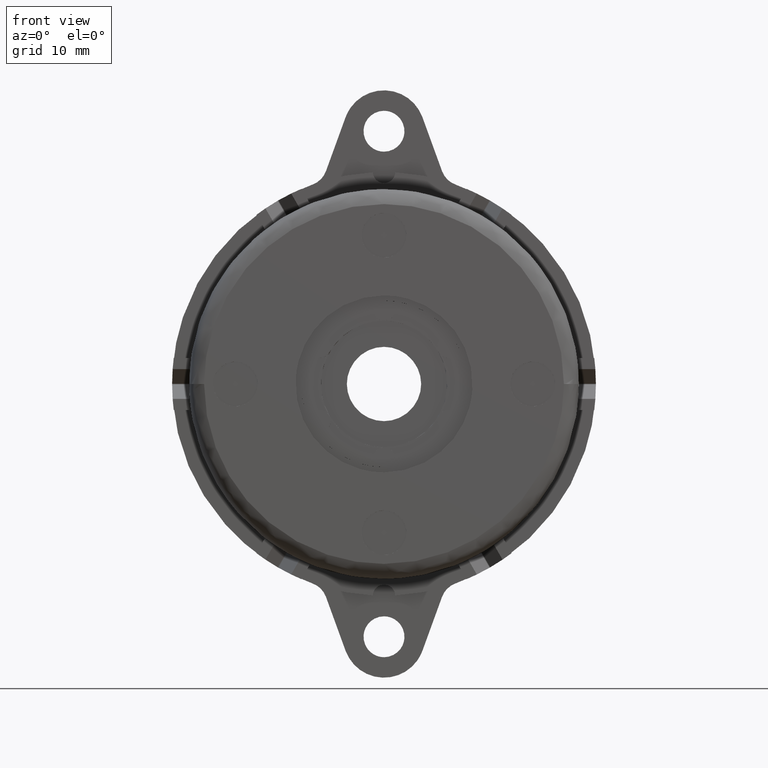
[diagram: clean part render]
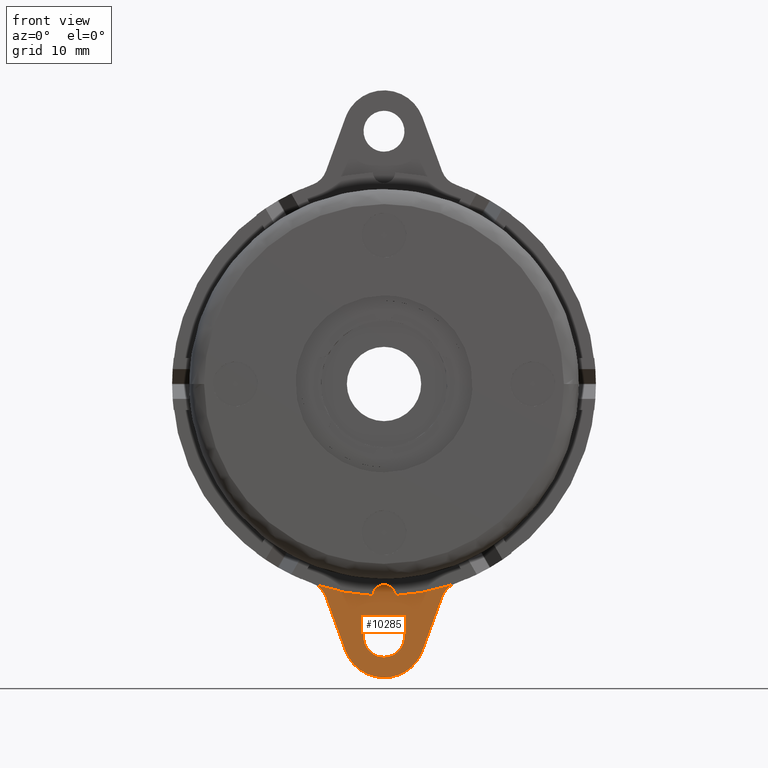
[diagram: same view with one face highlighted and labeled with its STEP entity id]
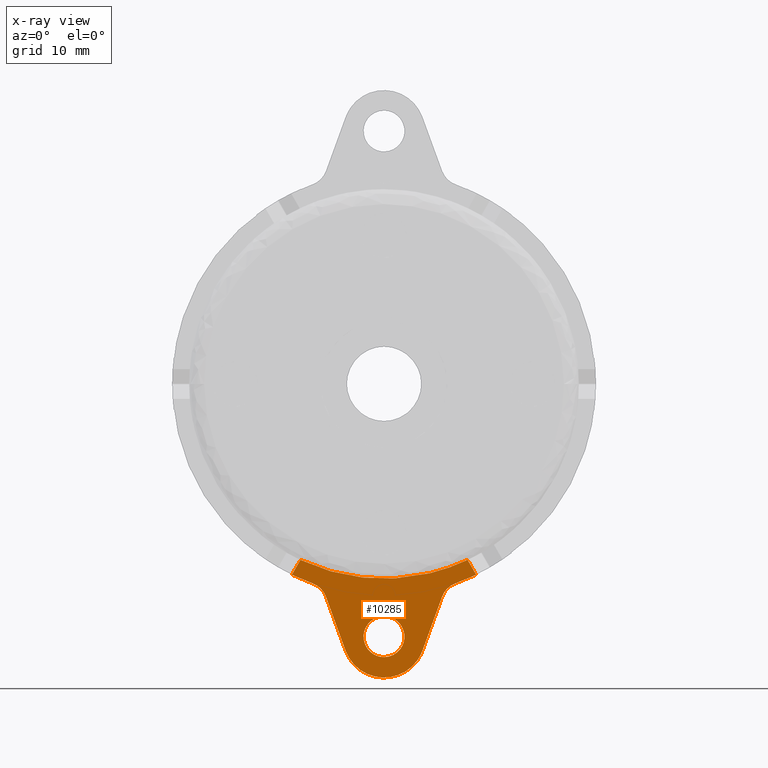
[diagram: x-ray of the same camera — body ghosted, the highlighted face saturated]
A machine part, front view. The second image highlights one B-rep face of the part: STEP entity #10285.
The next image is the same camera in x-ray: the body ghosted, the highlighted face saturated — about 0% of this face is hidden behind the body in this view.
In plain terms, the highlighted face is a freeform B-spline surface patch.
Its self-contained STEP definition (entity closure, byte-faithful):
#3379=CARTESIAN_POINT('',(0.0,-1.600010000000095,-31.250000000000000));
#3380=VERTEX_POINT('',#3379);
#3381=CARTESIAN_POINT('',(-2.741522667755104,-1.600010000000095,-33.784237486608703));
#3382=VERTEX_POINT('',#3381);
#3383=CARTESIAN_POINT('',(0.0,-1.600010000000095,-31.250000000000000));
#3384=CARTESIAN_POINT('',(-2.542073851930101,-1.600010000000095,-31.249999999999996));
#3385=CARTESIAN_POINT('',(-2.741522667755105,-1.600010000000095,-33.784237486608689));
#3393=(BOUNDED_CURVE()B_SPLINE_CURVE(2,(#3383,#3384,#3385),.UNSPECIFIED.,.F.,.U.)B_SPLINE_CURVE_WITH_KNOTS((3,3),(0.0,0.236331300624029),.UNSPECIFIED.)CURVE()GEOMETRIC_REPRESENTATION_ITEM()RATIONAL_B_SPLINE_CURVE((1.0,0.723120658615433,0.969723356153581))REPRESENTATION_ITEM(''));
#3394=EDGE_CURVE('',#3380,#3382,#3393,.T.);
#3435=CARTESIAN_POINT('',(2.741522667755104,-1.600010000000095,-34.215762513391297));
#3436=VERTEX_POINT('',#3435);
#3442=CARTESIAN_POINT('',(2.741522667755105,-1.600010000000095,-34.215762513391297));
#3443=CARTESIAN_POINT('',(2.750000000000000,-1.600010000000095,-34.108047794341282));
#3444=CARTESIAN_POINT('',(2.750000000000000,-1.600010000000095,-34.0));
#3445=CARTESIAN_POINT('',(2.750000000000000,-1.600010000000095,-31.250000000000000));
#3446=CARTESIAN_POINT('',(0.0,-1.600010000000095,-31.250000000000000));
#3454=(BOUNDED_CURVE()B_SPLINE_CURVE(2,(#3442,#3443,#3444,#3445,#3446),.UNSPECIFIED.,.F.,.U.)B_SPLINE_CURVE_WITH_KNOTS((3,2,3),(0.736331300624030,0.750000000000000,1.0),.UNSPECIFIED.)CURVE()GEOMETRIC_REPRESENTATION_ITEM()RATIONAL_B_SPLINE_CURVE((0.969723356153582,0.983986122571115,1.0,0.707106781186548,1.0))REPRESENTATION_ITEM(''));
#3455=EDGE_CURVE('',#3436,#3380,#3454,.T.);
#3478=CARTESIAN_POINT('',(0.0,-1.600010000000095,-36.750000000000007));
#3479=VERTEX_POINT('',#3478);
#3480=CARTESIAN_POINT('',(-2.741522667755105,-1.600010000000094,-33.784237486608696));
#3481=CARTESIAN_POINT('',(-2.750000000000000,-1.600010000000095,-33.891952205658725));
#3482=CARTESIAN_POINT('',(-2.750000000000000,-1.600010000000095,-34.0));
#3483=CARTESIAN_POINT('',(-2.750000000000000,-1.600010000000095,-36.750000000000007));
#3484=CARTESIAN_POINT('',(0.0,-1.600010000000095,-36.750000000000007));
#3492=(BOUNDED_CURVE()B_SPLINE_CURVE(2,(#3480,#3481,#3482,#3483,#3484),.UNSPECIFIED.,.F.,.U.)B_SPLINE_CURVE_WITH_KNOTS((3,2,3),(0.236331300624030,0.250000000000000,0.500000000000000),.UNSPECIFIED.)CURVE()GEOMETRIC_REPRESENTATION_ITEM()RATIONAL_B_SPLINE_CURVE((0.969723356153582,0.983986122571115,1.0,0.707106781186548,1.0))REPRESENTATION_ITEM(''));
#3493=EDGE_CURVE('',#3382,#3479,#3492,.T.);
#3495=CARTESIAN_POINT('',(0.0,-1.600010000000095,-36.750000000000007));
#3496=CARTESIAN_POINT('',(2.542073851930109,-1.600010000000095,-36.750000000000007));
#3497=CARTESIAN_POINT('',(2.741522667755105,-1.600010000000095,-34.215762513391297));
#3505=(BOUNDED_CURVE()B_SPLINE_CURVE(2,(#3495,#3496,#3497),.UNSPECIFIED.,.F.,.U.)B_SPLINE_CURVE_WITH_KNOTS((3,3),(0.500000000000000,0.736331300624030),.UNSPECIFIED.)CURVE()GEOMETRIC_REPRESENTATION_ITEM()RATIONAL_B_SPLINE_CURVE((1.0,0.723120658615433,0.969723356153582))REPRESENTATION_ITEM(''));
#3506=EDGE_CURVE('',#3479,#3436,#3505,.T.);
#4405=CARTESIAN_POINT('',(-5.168339999999890,-1.600010000000095,-35.881100000000004));
#4406=VERTEX_POINT('',#4405);
#4412=CARTESIAN_POINT('',(-7.808637704701380,-1.600010000000095,-28.626958831556649));
#4413=VERTEX_POINT('',#4412);
#4414=CARTESIAN_POINT('',(-7.808637704701380,-1.600010000000095,-28.626958831556649));
#4415=CARTESIAN_POINT('',(-5.168339999999890,-1.600010000000095,-35.881100000000004));
#4416=QUASI_UNIFORM_CURVE('',1,(#4414,#4415),.UNSPECIFIED.,.F.,.U.);
#4417=EDGE_CURVE('',#4413,#4406,#4416,.T.);
#4467=CARTESIAN_POINT('',(5.172314241144200,-1.600010000000095,-35.870070958775862));
#4468=VERTEX_POINT('',#4467);
#4474=CARTESIAN_POINT('',(-5.168339999999890,-1.600010000000095,-35.881100000000004));
#4475=CARTESIAN_POINT('',(-5.024652273700400,-1.600010000000103,-36.276114147201604));
#4476=CARTESIAN_POINT('',(-4.740690490187050,-1.600010000000084,-36.843677232018052));
#4477=CARTESIAN_POINT('',(-4.157418297594880,-1.600010000000101,-37.634201014369957));
#4478=CARTESIAN_POINT('',(-3.583367690201776,-1.600010000000097,-38.204709002605092));
#4479=CARTESIAN_POINT('',(-2.826110810992194,-1.600010000000077,-38.745173945947428));
#4480=CARTESIAN_POINT('',(-2.023339941418148,-1.600010000000130,-39.145188376895248));
#4481=CARTESIAN_POINT('',(-1.061891087671165,-1.600010000000061,-39.427406180029877));
#4482=CARTESIAN_POINT('',(-0.029465141878731,-1.600010000000124,-39.535212056554521));
#4483=CARTESIAN_POINT('',(1.004691050001323,-1.600010000000118,-39.439976064454228));
#4484=CARTESIAN_POINT('',(1.883643697830362,-1.600010000000080,-39.188988655585213));
#4485=CARTESIAN_POINT('',(2.650612793947301,-1.600010000000096,-38.840779544654687));
#4486=CARTESIAN_POINT('',(3.405389387498034,-1.600010000000093,-38.357605928993081));
#4487=CARTESIAN_POINT('',(4.113098414348349,-1.600010000000108,-37.696984601319429));
#4488=CARTESIAN_POINT('',(4.741283357292510,-1.600010000000067,-36.850242766234139));
#4489=CARTESIAN_POINT('',(5.041353084450384,-1.600010000000136,-36.232443845220601));
#4490=CARTESIAN_POINT('',(5.172314241144200,-1.600010000000095,-35.870070958775862));
#4491=B_SPLINE_CURVE_WITH_KNOTS('',3,(#4474,#4475,#4476,#4477,#4478,#4479,#4480,#4481,#4482,#4483,#4484,#4485,#4486,#4487,#4488,#4489,#4490),.UNSPECIFIED.,.F.,.U.,(4,1,1,1,1,1,1,1,1,1,1,1,1,1,4),(0.000000164549167,1.260986827615415,1.891503313839763,2.942370109790785,3.677975447672797,4.676285744535443,5.622064577821482,6.672930841937554,7.776242134699047,8.722024261193226,9.405091572457000,10.298315993828981,11.401724854001490,12.294929739515300,13.450858885865840),.UNSPECIFIED.);
#4492=EDGE_CURVE('',#4406,#4468,#4491,.T.);
#4510=CARTESIAN_POINT('',(7.808582423385880,-1.600010000000095,-28.626980816584400));
#4511=VERTEX_POINT('',#4510);
#4517=CARTESIAN_POINT('',(5.172314241144200,-1.600010000000095,-35.870070958775862));
#4518=CARTESIAN_POINT('',(7.808582423385880,-1.600010000000095,-28.626980816584400));
#4519=QUASI_UNIFORM_CURVE('',1,(#4517,#4518),.UNSPECIFIED.,.F.,.U.);
#4520=EDGE_CURVE('',#4468,#4511,#4519,.T.);
#4555=CARTESIAN_POINT('',(9.615502280273301,-1.600010000000095,-26.828941758818200));
#4556=VERTEX_POINT('',#4555);
#4562=CARTESIAN_POINT('',(9.615502280273308,-1.600010000000095,-26.828941758818221));
#4563=CARTESIAN_POINT('',(8.290123113941904,-1.600010000000096,-27.303958124005177));
#4564=CARTESIAN_POINT('',(7.808582423385887,-1.600010000000095,-28.626980816584400));
#4572=(BOUNDED_CURVE()B_SPLINE_CURVE(2,(#4562,#4563,#4564),.UNSPECIFIED.,.F.,.U.)CURVE()GEOMETRIC_REPRESENTATION_ITEM()QUASI_UNIFORM_CURVE()RATIONAL_B_SPLINE_CURVE((1.0,0.905263868492577,1.0))REPRESENTATION_ITEM(''));
#4573=EDGE_CURVE('',#4556,#4511,#4572,.T.);
#4609=CARTESIAN_POINT('',(-9.615551474098950,-1.600010000000095,-26.828924127682651));
#4610=VERTEX_POINT('',#4609);
#4611=CARTESIAN_POINT('',(-7.808637704701393,-1.600010000000095,-28.626958831556649));
#4612=CARTESIAN_POINT('',(-8.290177864974256,-1.600010000000095,-27.303941243549836));
#4613=CARTESIAN_POINT('',(-9.615551474098957,-1.600010000000095,-26.828924127682669));
#4621=(BOUNDED_CURVE()B_SPLINE_CURVE(2,(#4611,#4612,#4613),.UNSPECIFIED.,.F.,.U.)CURVE()GEOMETRIC_REPRESENTATION_ITEM()QUASI_UNIFORM_CURVE()RATIONAL_B_SPLINE_CURVE((1.0,0.905264446225925,1.0))REPRESENTATION_ITEM(''));
#4622=EDGE_CURVE('',#4413,#4610,#4621,.T.);
#7052=CARTESIAN_POINT('',(-12.392609790845260,-1.600010000000095,-25.664629796119151));
#7053=VERTEX_POINT('',#7052);
#7059=CARTESIAN_POINT('',(-11.239199197552059,-1.600010000000095,-23.666864046547150));
#7060=VERTEX_POINT('',#7059);
#7061=CARTESIAN_POINT('',(-11.239199197552059,-1.600010000000095,-23.666864046547150));
#7062=CARTESIAN_POINT('',(-12.392609790845260,-1.600010000000095,-25.664629796119151));
#7063=QUASI_UNIFORM_CURVE('',1,(#7061,#7062),.UNSPECIFIED.,.F.,.U.);
#7064=EDGE_CURVE('',#7060,#7053,#7063,.T.);
#7080=CARTESIAN_POINT('',(11.239199197552100,-1.600010000000095,-23.666864046547150));
#7081=VERTEX_POINT('',#7080);
#7087=CARTESIAN_POINT('',(12.392609790845301,-1.600010000000095,-25.664629796119101));
#7088=VERTEX_POINT('',#7087);
#7089=CARTESIAN_POINT('',(12.392609790845301,-1.600010000000095,-25.664629796119101));
#7090=CARTESIAN_POINT('',(11.239199197552100,-1.600010000000095,-23.666864046547150));
#7091=QUASI_UNIFORM_CURVE('',1,(#7089,#7090),.UNSPECIFIED.,.F.,.U.);
#7092=EDGE_CURVE('',#7088,#7081,#7091,.T.);
#7117=CARTESIAN_POINT('',(9.615502280273299,-1.600010000000095,-26.828941758818200));
#7118=CARTESIAN_POINT('',(11.034854278091489,-1.600010000000095,-26.320245497362215));
#7119=CARTESIAN_POINT('',(12.392609790845301,-1.600010000000095,-25.664629796119119));
#7127=(BOUNDED_CURVE()B_SPLINE_CURVE(2,(#7117,#7118,#7119),.UNSPECIFIED.,.F.,.U.)CURVE()GEOMETRIC_REPRESENTATION_ITEM()QUASI_UNIFORM_CURVE()RATIONAL_B_SPLINE_CURVE((1.0,0.998603526551181,1.0))REPRESENTATION_ITEM(''));
#7128=EDGE_CURVE('',#4556,#7088,#7127,.T.);
#7150=CARTESIAN_POINT('',(-12.392609790845260,-1.600010000000095,-25.664629796119140));
#7151=CARTESIAN_POINT('',(-11.034877873418155,-1.600010000000095,-26.320234103951179));
#7152=CARTESIAN_POINT('',(-9.615551474098961,-1.600010000000095,-26.828924127682669));
#7160=(BOUNDED_CURVE()B_SPLINE_CURVE(2,(#7150,#7151,#7152),.UNSPECIFIED.,.F.,.U.)CURVE()GEOMETRIC_REPRESENTATION_ITEM()QUASI_UNIFORM_CURVE()RATIONAL_B_SPLINE_CURVE((1.0,0.998603574985490,1.0))REPRESENTATION_ITEM(''));
#7161=EDGE_CURVE('',#7053,#4610,#7160,.T.);
#10250=CARTESIAN_POINT('',(-13.630631460912140,-1.600010000000085,-22.875999174844779));
#10251=CARTESIAN_POINT('',(13.630632125703571,-1.600010000000085,-22.875999174844779));
#10252=CARTESIAN_POINT('',(-13.630631460912140,-1.600010000000085,-40.290860521907213));
#10253=CARTESIAN_POINT('',(13.630632125703571,-1.600010000000085,-40.290860521907213));
#10254=B_SPLINE_SURFACE_WITH_KNOTS('',1,1,((#10250,#10252),(#10251,#10253)),.UNSPECIFIED.,.F.,.F.,.U.,(2,2),(2,2),(0.0,27.261263586615708),(0.0,17.414861347062430),.UNSPECIFIED.);
#10255=ORIENTED_EDGE('',*,*,#4573,.F.);
#10256=ORIENTED_EDGE('',*,*,#7128,.T.);
#10257=ORIENTED_EDGE('',*,*,#7092,.T.);
#10258=CARTESIAN_POINT('',(-11.239199197552059,-1.600010000000095,-23.666864046547150));
#10259=CARTESIAN_POINT('',(1.561251E-014,-1.600010000000095,-29.004267360894762));
#10260=CARTESIAN_POINT('',(11.239199197552081,-1.600010000000095,-23.666864046547140));
#10268=(BOUNDED_CURVE()B_SPLINE_CURVE(2,(#10258,#10259,#10260),.UNSPECIFIED.,.F.,.U.)CURVE()GEOMETRIC_REPRESENTATION_ITEM()QUASI_UNIFORM_CURVE()RATIONAL_B_SPLINE_CURVE((1.0,0.903315387146250,1.0))REPRESENTATION_ITEM(''));
#10269=EDGE_CURVE('',#7060,#7081,#10268,.T.);
#10270=ORIENTED_EDGE('',*,*,#10269,.F.);
#10271=ORIENTED_EDGE('',*,*,#7064,.T.);
#10272=ORIENTED_EDGE('',*,*,#7161,.T.);
#10273=ORIENTED_EDGE('',*,*,#4622,.F.);
#10274=ORIENTED_EDGE('',*,*,#4417,.T.);
#10275=ORIENTED_EDGE('',*,*,#4492,.T.);
#10276=ORIENTED_EDGE('',*,*,#4520,.T.);
#10277=EDGE_LOOP('',(#10255,#10256,#10257,#10270,#10271,#10272,#10273,#10274,#10275,#10276));
#10278=FACE_OUTER_BOUND('',#10277,.T.);
#10279=ORIENTED_EDGE('',*,*,#3506,.F.);
#10280=ORIENTED_EDGE('',*,*,#3493,.F.);
#10281=ORIENTED_EDGE('',*,*,#3394,.F.);
#10282=ORIENTED_EDGE('',*,*,#3455,.F.);
#10283=EDGE_LOOP('',(#10279,#10280,#10281,#10282));
#10284=FACE_BOUND('',#10283,.T.);
#10285=ADVANCED_FACE('',(#10278,#10284),#10254,.F.);